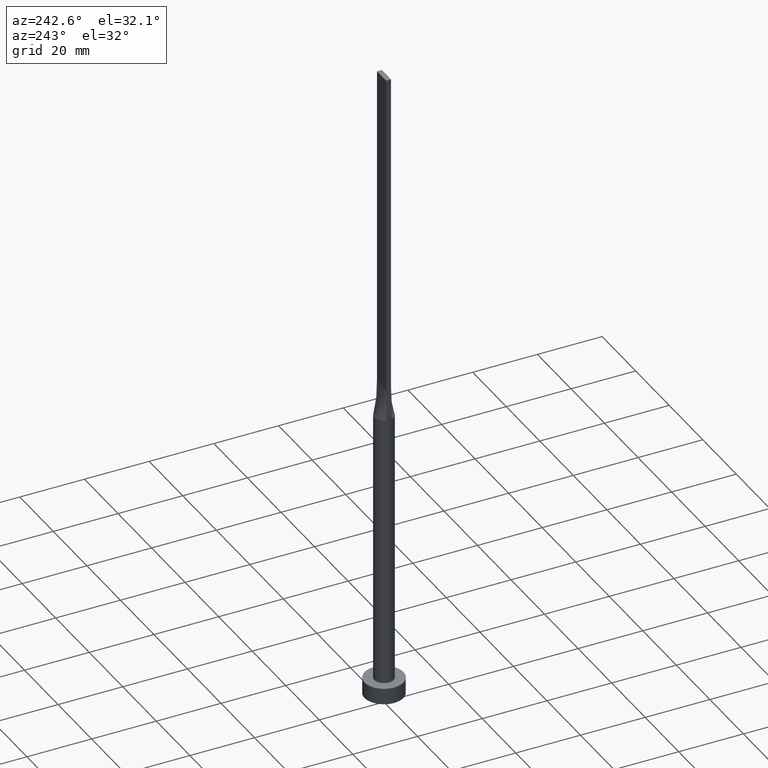
[diagram: clean part render]
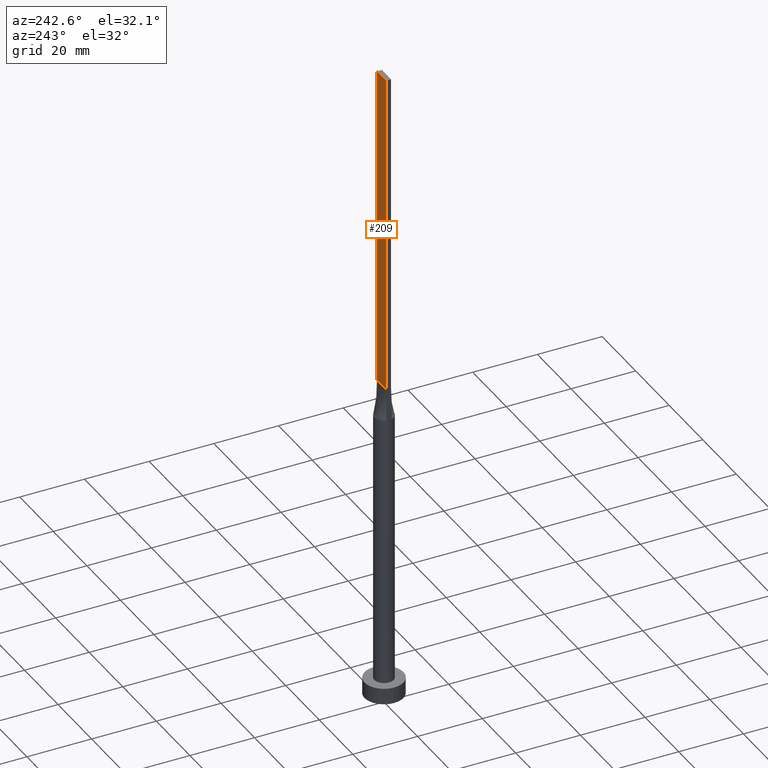
[diagram: same view with one face highlighted and labeled with its STEP entity id]
A machine part, auxiliary view. The second image highlights one B-rep face of the part: STEP entity #209.
In plain terms, the highlighted planar face has unit normal (0, -1, 0).
Its self-contained STEP definition (entity closure, byte-faithful):
#7 = AXIS2_PLACEMENT_3D ( 'NONE', #29, #311, #445 ) ;
#17 = CARTESIAN_POINT ( 'NONE',  ( 2.750000000000000000, 0.7500000000000002220, 200.0000000000000000 ) ) ;
#21 = CARTESIAN_POINT ( 'NONE',  ( -2.750000000000000000, 0.7500000000000002220, 100.0000000000000000 ) ) ;
#28 = EDGE_CURVE ( 'NONE', #521, #545, #377, .T. ) ;
#29 = CARTESIAN_POINT ( 'NONE',  ( 2.750000000000000000, 0.7500000000000002220, 200.0000000000000000 ) ) ;
#49 = CARTESIAN_POINT ( 'NONE',  ( -2.750000000000000000, 0.7500000000000002220, 200.0000000000000000 ) ) ;
#59 = LINE ( 'NONE', #508, #188 ) ;
#68 = LINE ( 'NONE', #204, #244 ) ;
#74 = CARTESIAN_POINT ( 'NONE',  ( 2.750000000000000000, 0.7500000000000002220, 200.0000000000000000 ) ) ;
#105 = EDGE_CURVE ( 'NONE', #545, #116, #59, .T. ) ;
#116 = VERTEX_POINT ( 'NONE', #21 ) ;
#122 = ORIENTED_EDGE ( 'NONE', *, *, #472, .T. ) ;
#162 = VECTOR ( 'NONE', #548, 1000.000000000000000 ) ;
#188 = VECTOR ( 'NONE', #501, 1000.000000000000000 ) ;
#192 = ORIENTED_EDGE ( 'NONE', *, *, #28, .F. ) ;
#194 = DIRECTION ( 'NONE',  ( -1.000000000000000000, -0.000000000000000000, -0.000000000000000000 ) ) ;
#204 = CARTESIAN_POINT ( 'NONE',  ( -2.750000000000000000, 0.7500000000000002220, 100.0000000000000000 ) ) ;
#208 = ORIENTED_EDGE ( 'NONE', *, *, #511, .T. ) ;
#209 = ADVANCED_FACE ( 'NONE', ( #478 ), #263, .F. ) ;
#225 = CARTESIAN_POINT ( 'NONE',  ( 2.750000000000000000, 0.7500000000000002220, 100.0000000000000000 ) ) ;
#244 = VECTOR ( 'NONE', #194, 1000.000000000000000 ) ;
#263 = PLANE ( 'NONE',  #7 ) ;
#311 = DIRECTION ( 'NONE',  ( 0.000000000000000000, -1.000000000000000000, 0.000000000000000000 ) ) ;
#346 = ORIENTED_EDGE ( 'NONE', *, *, #105, .F. ) ;
#363 = VERTEX_POINT ( 'NONE', #225 ) ;
#369 = LINE ( 'NONE', #418, #162 ) ;
#377 = LINE ( 'NONE', #17, #567 ) ;
#418 = CARTESIAN_POINT ( 'NONE',  ( 2.750000000000000000, 0.7500000000000002220, 200.0000000000000000 ) ) ;
#445 = DIRECTION ( 'NONE',  ( 0.000000000000000000, -0.000000000000000000, -1.000000000000000000 ) ) ;
#471 = DIRECTION ( 'NONE',  ( -1.000000000000000000, 0.000000000000000000, 0.000000000000000000 ) ) ;
#472 = EDGE_CURVE ( 'NONE', #363, #116, #68, .T. ) ;
#478 = FACE_OUTER_BOUND ( 'NONE', #517, .T. ) ;
#501 = DIRECTION ( 'NONE',  ( -0.000000000000000000, -0.000000000000000000, -1.000000000000000000 ) ) ;
#508 = CARTESIAN_POINT ( 'NONE',  ( -2.750000000000000000, 0.7500000000000002220, 200.0000000000000000 ) ) ;
#511 = EDGE_CURVE ( 'NONE', #521, #363, #369, .T. ) ;
#517 = EDGE_LOOP ( 'NONE', ( #122, #346, #192, #208 ) ) ;
#521 = VERTEX_POINT ( 'NONE', #74 ) ;
#545 = VERTEX_POINT ( 'NONE', #49 ) ;
#548 = DIRECTION ( 'NONE',  ( -0.000000000000000000, -0.000000000000000000, -1.000000000000000000 ) ) ;
#567 = VECTOR ( 'NONE', #471, 1000.000000000000000 ) ;